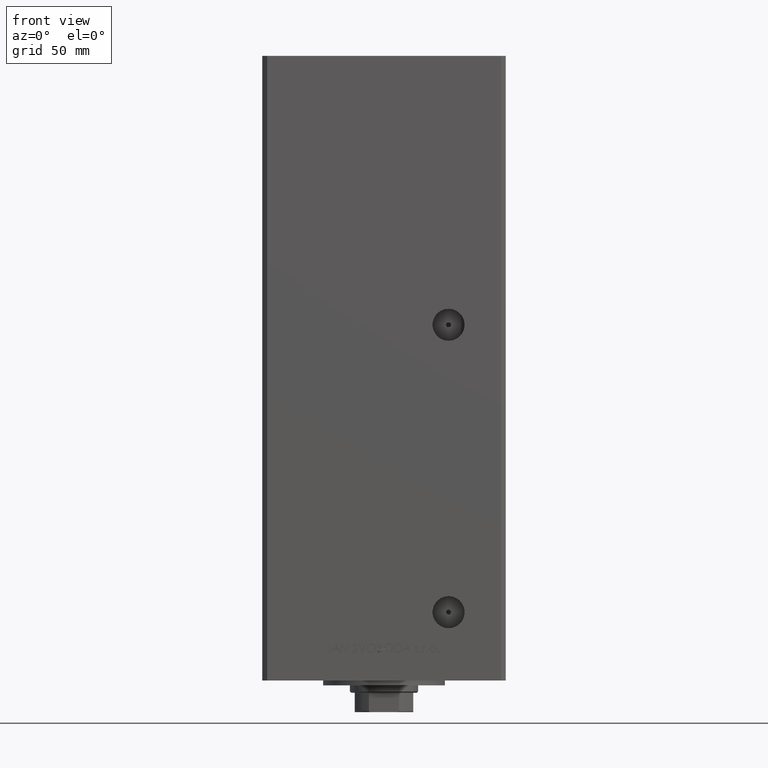
[diagram: clean part render]
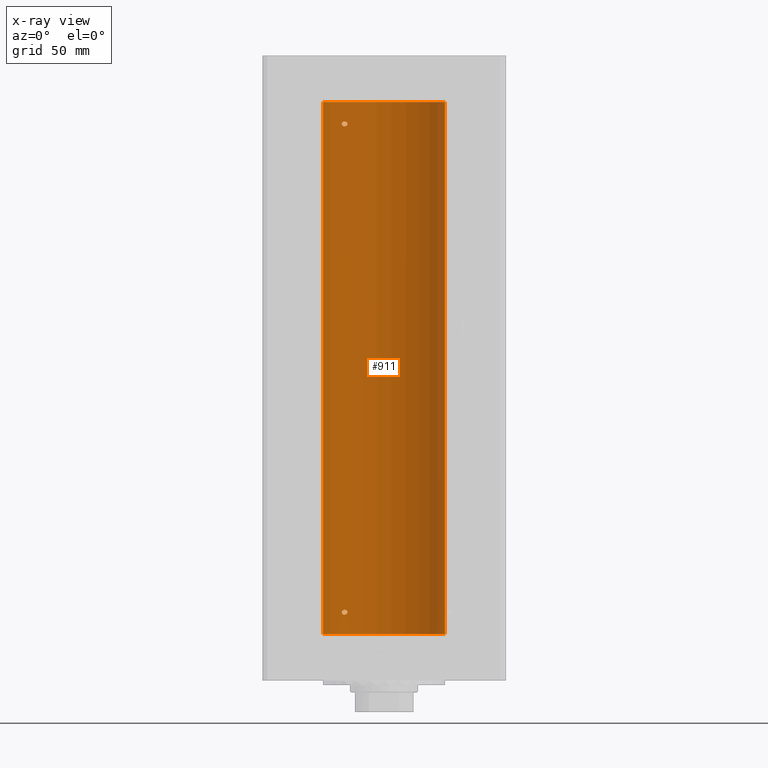
[diagram: x-ray — body ghosted, one internal face saturated and labeled with its STEP entity id]
A machine part, front view, then the same camera in x-ray: the body is ghosted and one INTERNAL B-rep face — a face not visible from any outside direction — is saturated and labeled: STEP entity #911.
In plain terms, the highlighted cylindrical surface (partial cylindrical patch) has radius 25 mm, axis along (-0, -0, -1).
Its self-contained STEP definition (entity closure, byte-faithful):
#595 = ORIENTED_EDGE ( 'NONE', *, *, #38505, .F. ) ;
#694 = LINE ( 'NONE', #38426, #27627 ) ;
#911 = ADVANCED_FACE ( 'NONE', ( #50081, #20165, #28049 ), #39436, .F. ) ;
#1089 = CARTESIAN_POINT ( 'NONE',  ( -16.34293146994552259, 18.91921593628409681, 208.4973425906725879 ) ) ;
#1253 = ORIENTED_EDGE ( 'NONE', *, *, #18450, .F. ) ;
#1343 = CARTESIAN_POINT ( 'NONE',  ( -15.23538646979298505, 19.82157806413532697, 208.9119998952828041 ) ) ;
#1860 = DIRECTION ( 'NONE',  ( -0.000000000000000000, 0.000000000000000000, 1.000000000000000000 ) ) ;
#2452 = EDGE_LOOP ( 'NONE', ( #22030, #1253 ) ) ;
#3408 = CARTESIAN_POINT ( 'NONE',  ( -15.01476641895662567, 19.98894406010707314, 209.6687945634013488 ) ) ;
#3441 = CARTESIAN_POINT ( 'NONE',  ( -15.00000000000003020, 19.99999999999998224, 9.000000000000000000 ) ) ;
#3906 = CARTESIAN_POINT ( 'NONE',  ( -15.58230678163759642, 19.55030131031898577, 210.3437394867029582 ) ) ;
#4152 = CARTESIAN_POINT ( 'NONE',  ( -15.00000000000018474, 20.00000000000002487, 209.5840388036241109 ) ) ;
#4233 = VERTEX_POINT ( 'NONE', #25284 ) ;
#4751 = CARTESIAN_POINT ( 'NONE',  ( 0.000000000000000000, 0.000000000000000000, 218.5000000000000000 ) ) ;
#4887 = CARTESIAN_POINT ( 'NONE',  ( -15.70664578139651546, 19.45064696206092947, 208.6005795994921925 ) ) ;
#5494 = CARTESIAN_POINT ( 'NONE',  ( 25.00000000000000000, 3.061616997868383043E-15, 0.000000000000000000 ) ) ;
#5673 = EDGE_LOOP ( 'NONE', ( #595, #43366 ) ) ;
#5897 = CARTESIAN_POINT ( 'NONE',  ( -16.71492528194901794, 18.59135325782701642, 208.5801415583420351 ) ) ;
#5979 = CARTESIAN_POINT ( 'NONE',  ( -25.00000000000000000, 0.000000000000000000, 218.5000000000000000 ) ) ;
#6398 = CARTESIAN_POINT ( 'NONE',  ( -17.30163983552692741, 18.04615713653365106, 9.336007472727791523 ) ) ;
#6888 = CARTESIAN_POINT ( 'NONE',  ( -15.00000000000022915, 19.99999999999999289, 9.084038803624169489 ) ) ;
#6976 = VERTEX_POINT ( 'NONE', #46863 ) ;
#7140 = CARTESIAN_POINT ( 'NONE',  ( -17.34935157289750407, 17.99999999999998224, 9.170973690606334827 ) ) ;
#7234 = CARTESIAN_POINT ( 'NONE',  ( -17.15234217094409530, 18.18812579706693100, 8.396573043774957057 ) ) ;
#9434 = CARTESIAN_POINT ( 'NONE',  ( -17.05249165747618534, 18.28208333366438509, 208.7922192200363725 ) ) ;
#9932 = CARTESIAN_POINT ( 'NONE',  ( -15.06763582406801483, 19.94912143246361680, 9.325069938771756384 ) ) ;
#11042 = CIRCLE ( 'NONE', #36938, 25.00000000000000000 ) ;
#11231 = CARTESIAN_POINT ( 'NONE',  ( -14.99999999999999112, 20.00000000000000711, 209.5000000000000000 ) ) ;
#11702 = EDGE_CURVE ( 'NONE', #6976, #21147, #24823, .T. ) ;
#12589 = DIRECTION ( 'NONE',  ( -0.000000000000000000, -0.000000000000000000, -1.000000000000000000 ) ) ;
#12975 = CARTESIAN_POINT ( 'NONE',  ( -15.01482636753733146, 19.98889854010115741, 209.3312026610076941 ) ) ;
#13231 = CARTESIAN_POINT ( 'NONE',  ( -15.10490010356605595, 19.92096840819819903, 209.1037666713224894 ) ) ;
#13982 = CARTESIAN_POINT ( 'NONE',  ( -15.10490800566739011, 19.92096305044237425, 9.396293174044259899 ) ) ;
#14086 = CARTESIAN_POINT ( 'NONE',  ( -17.05249165747622087, 18.28208333366434246, 8.292219220036422200 ) ) ;
#14336 = CARTESIAN_POINT ( 'NONE',  ( -16.34293146994556167, 18.91921593628406484, 7.997342590672626095 ) ) ;
#14583 = CARTESIAN_POINT ( 'NONE',  ( -15.06722189748652241, 19.94943357555937169, 8.675980324878883820 ) ) ;
#14831 = CARTESIAN_POINT ( 'NONE',  ( -15.01482636753737054, 19.98889854010113964, 8.831202661007710120 ) ) ;
#15066 = VERTEX_POINT ( 'NONE', #5494 ) ;
#15278 = CARTESIAN_POINT ( 'NONE',  ( -17.14593038898727428, 18.19399314418736324, 210.0959448831964664 ) ) ;
#15535 = CARTESIAN_POINT ( 'NONE',  ( -16.99843849356149050, 18.33190197607055794, 210.2468335145757123 ) ) ;
#16902 = CARTESIAN_POINT ( 'NONE',  ( 0.000000000000000000, 0.000000000000000000, 218.5000000000000000 ) ) ;
#17098 = LINE ( 'NONE', #5979, #42498 ) ;
#17275 = DIRECTION ( 'NONE',  ( 1.000000000000000000, 0.000000000000000000, 0.000000000000000000 ) ) ;
#17659 = CARTESIAN_POINT ( 'NONE',  ( 25.00000000000000000, 3.061616997868383043E-15, 218.5000000000000000 ) ) ;
#17762 = CARTESIAN_POINT ( 'NONE',  ( -17.19010376497224613, 18.15221652163108601, 9.535670123568010581 ) ) ;
#17790 = ORIENTED_EDGE ( 'NONE', *, *, #26127, .F. ) ;
#17959 = CIRCLE ( 'NONE', #24442, 25.00000000000000000 ) ;
#18124 = CARTESIAN_POINT ( 'NONE',  ( -16.71492528194906768, 18.59135325782698089, 8.080141558342051056 ) ) ;
#18366 = CARTESIAN_POINT ( 'NONE',  ( -16.46844752485329622, 18.81003400474351750, 8.011544319038927497 ) ) ;
#18450 = EDGE_CURVE ( 'NONE', #21147, #6976, #23706, .T. ) ;
#18607 = CARTESIAN_POINT ( 'NONE',  ( -17.30269557861145202, 18.04515136187498570, 8.666042081755742643 ) ) ;
#18824 = CARTESIAN_POINT ( 'NONE',  ( -16.72476285461317502, 18.58415905903083498, 210.4449447607957211 ) ) ;
#19070 = CARTESIAN_POINT ( 'NONE',  ( -15.34624284195505162, 19.73614442075940190, 210.1876185318512853 ) ) ;
#19158 = DIRECTION ( 'NONE',  ( -0.000000000000000000, -0.000000000000000000, -1.000000000000000000 ) ) ;
#19410 = DIRECTION ( 'NONE',  ( -1.000000000000000000, 0.000000000000000000, 0.000000000000000000 ) ) ;
#19561 = VERTEX_POINT ( 'NONE', #19981 ) ;
#19981 = CARTESIAN_POINT ( 'NONE',  ( -14.99999999999999112, 20.00000000000000711, 209.5000000000000000 ) ) ;
#20165 = FACE_BOUND ( 'NONE', #2452, .T. ) ;
#20816 = CARTESIAN_POINT ( 'NONE',  ( -16.46844752485324648, 18.81003400474354947, 208.5115443190389612 ) ) ;
#20822 = CARTESIAN_POINT ( 'NONE',  ( 0.000000000000000000, 0.000000000000000000, 0.000000000000000000 ) ) ;
#21147 = VERTEX_POINT ( 'NONE', #27682 ) ;
#21322 = CARTESIAN_POINT ( 'NONE',  ( -16.08757264251632080, 19.13682698743034649, 208.5034427658482059 ) ) ;
#21576 = CARTESIAN_POINT ( 'NONE',  ( -15.01476641895665232, 19.98894406010705183, 9.168794563401343467 ) ) ;
#21822 = CARTESIAN_POINT ( 'NONE',  ( -15.70535969280556543, 19.45169171760799642, 9.898960772112495476 ) ) ;
#22030 = ORIENTED_EDGE ( 'NONE', *, *, #11702, .F. ) ;
#22665 = CARTESIAN_POINT ( 'NONE',  ( -15.95808436639363492, 19.24489366819298297, 8.024260878849535317 ) ) ;
#22882 = CARTESIAN_POINT ( 'NONE',  ( -16.46913072925702792, 18.81168496547891777, 210.5057775588113884 ) ) ;
#23380 = CARTESIAN_POINT ( 'NONE',  ( -15.10490800566735103, 19.92096305044241689, 209.8962931740442457 ) ) ;
#23706 = B_SPLINE_CURVE_WITH_KNOTS ( 'NONE', 3,
 ( #48678, #6888, #21576, #9932, #13982, #44889, #45136, #49427, #21822, #29697, #25376, #37783, #29937, #49190, #25873, #40836, #17762, #6398, #7140, #37272 ),
 .UNSPECIFIED., .F., .F.,
 ( 4, 2, 2, 2, 2, 2, 2, 2, 2, 4 ),
 ( 0.004032696862986564698, 0.004284699222246930381, 0.004536701581507295196, 0.005040706300028027428, 0.005544711018548758794, 0.006048715737069490159, 0.007056725174110960695, 0.007308727533371327245, 0.007560729892631692928, 0.008064734611152420823 ),
 .UNSPECIFIED. ) ;
#23749 = DIRECTION ( 'NONE',  ( -0.000000000000000000, 0.000000000000000000, 1.000000000000000000 ) ) ;
#24343 = CARTESIAN_POINT ( 'NONE',  ( -25.00000000000000000, 0.000000000000000000, 218.5000000000000000 ) ) ;
#24442 = AXIS2_PLACEMENT_3D ( 'NONE', #20822, #1860, #17275 ) ;
#24823 = B_SPLINE_CURVE_WITH_KNOTS ( 'NONE', 3,
 ( #30525, #30281, #18607, #7234, #14086, #41182, #18124, #18366, #14336, #45238, #22665, #33832, #33336, #48789, #37136, #34073, #14583, #14831, #38122, #3441 ),
 .UNSPECIFIED., .F., .F.,
 ( 4, 2, 2, 2, 2, 2, 2, 2, 2, 4 ),
 ( 1.994630283518400476E-16, 0.0005040871078734959028, 0.001008174215746792312, 0.001512261323620088613, 0.002016348431493385131, 0.002520435539366681649, 0.003024522647239977734, 0.003528609755113270782, 0.003780653309049917740, 0.004032696862986564698 ),
 .UNSPECIFIED. ) ;
#24872 = CARTESIAN_POINT ( 'NONE',  ( -15.06722189748648866, 19.94943357555938590, 209.1759803248789069 ) ) ;
#25284 = CARTESIAN_POINT ( 'NONE',  ( -17.34935157289806185, 17.99999999999981526, 209.5000000000001137 ) ) ;
#25376 = CARTESIAN_POINT ( 'NONE',  ( -16.08745393861406825, 19.13692152169247507, 9.996501509986934764 ) ) ;
#25708 = DIRECTION ( 'NONE',  ( -0.000000000000000000, -0.000000000000000000, -1.000000000000000000 ) ) ;
#25873 = CARTESIAN_POINT ( 'NONE',  ( -17.05007833789896310, 18.28384926940283606, 9.701373999012135485 ) ) ;
#26127 = EDGE_CURVE ( 'NONE', #29014, #15066, #694, .T. ) ;
#26641 = AXIS2_PLACEMENT_3D ( 'NONE', #4751, #12589, #19410 ) ;
#26688 = CARTESIAN_POINT ( 'NONE',  ( -15.06763582406798818, 19.94912143246363811, 209.8250699387717475 ) ) ;
#27169 = ORIENTED_EDGE ( 'NONE', *, *, #42645, .T. ) ;
#27627 = VECTOR ( 'NONE', #19158, 1000.000000000000000 ) ;
#27682 = CARTESIAN_POINT ( 'NONE',  ( -15.00000000000003020, 19.99999999999998224, 9.000000000000000000 ) ) ;
#27738 = EDGE_CURVE ( 'NONE', #15066, #29715, #17959, .T. ) ;
#28049 = FACE_BOUND ( 'NONE', #5673, .T. ) ;
#28075 = DIRECTION ( 'NONE',  ( 1.000000000000000000, 0.000000000000000000, 0.000000000000000000 ) ) ;
#28941 = CARTESIAN_POINT ( 'NONE',  ( -17.34935157289747210, 18.00000000000002132, 209.3289983604257998 ) ) ;
#29014 = VERTEX_POINT ( 'NONE', #17659 ) ;
#29120 = EDGE_LOOP ( 'NONE', ( #17790, #38860, #27169, #42101 ) ) ;
#29697 = CARTESIAN_POINT ( 'NONE',  ( -15.95796937689564210, 19.24499537862564225, 9.975773099652192499 ) ) ;
#29715 = VERTEX_POINT ( 'NONE', #39539 ) ;
#29937 = CARTESIAN_POINT ( 'NONE',  ( -16.72476285461320700, 18.58415905903079945, 9.944944760795701555 ) ) ;
#30004 = CARTESIAN_POINT ( 'NONE',  ( -15.95796937689560480, 19.24499537862567422, 210.4757730996522298 ) ) ;
#30247 = CARTESIAN_POINT ( 'NONE',  ( -17.19010376497220705, 18.15221652163111088, 210.0356701235680248 ) ) ;
#30281 = CARTESIAN_POINT ( 'NONE',  ( -17.34935157289750052, 17.99999999999997868, 8.828998360425810432 ) ) ;
#30525 = CARTESIAN_POINT ( 'NONE',  ( -17.34935157289809737, 17.99999999999978684, 9.000000000000094147 ) ) ;
#30997 = CARTESIAN_POINT ( 'NONE',  ( -17.34935157289806185, 17.99999999999981526, 209.5000000000001137 ) ) ;
#31453 = B_SPLINE_CURVE_WITH_KNOTS ( 'NONE', 3,
 ( #44135, #28941, #32728, #48176, #9434, #47675, #5897, #20816, #1089, #21322, #36776, #4887, #31971, #36021, #1343, #13231, #24872, #12975, #36276, #48425 ),
 .UNSPECIFIED., .F., .F.,
 ( 4, 2, 2, 2, 2, 2, 2, 2, 2, 4 ),
 ( 2.254873622441466949E-16, 0.0005040871078735091300, 0.001008174215746792746, 0.001512261323620076470, 0.002016348431493359978, 0.002520435539366643485, 0.003024522647239927427, 0.003528609755113210501, 0.003780653309049884347, 0.004032696862986557759 ),
 .UNSPECIFIED. ) ;
#31971 = CARTESIAN_POINT ( 'NONE',  ( -15.58164749401199956, 19.55082150006405328, 208.6566780726851391 ) ) ;
#32728 = CARTESIAN_POINT ( 'NONE',  ( -17.30269557861141294, 18.04515136187502478, 209.1660420817557053 ) ) ;
#33336 = CARTESIAN_POINT ( 'NONE',  ( -15.58164749401203331, 19.55082150006402486, 8.156678072685190628 ) ) ;
#33832 = CARTESIAN_POINT ( 'NONE',  ( -15.70664578139654566, 19.45064696206089749, 8.100579599492109040 ) ) ;
#33906 = EDGE_CURVE ( 'NONE', #19561, #4233, #40312, .T. ) ;
#34073 = CARTESIAN_POINT ( 'NONE',  ( -15.10490010356608792, 19.92096840819818127, 8.603766671322519599 ) ) ;
#34288 = CARTESIAN_POINT ( 'NONE',  ( -15.70535969280552280, 19.45169171760802485, 210.3989607721124173 ) ) ;
#34532 = CARTESIAN_POINT ( 'NONE',  ( -17.30163983552688833, 18.04615713653367948, 209.8360074727278572 ) ) ;
#34778 = CARTESIAN_POINT ( 'NONE',  ( -15.23594348686699185, 19.82115246225716021, 210.0887219326858144 ) ) ;
#36021 = CARTESIAN_POINT ( 'NONE',  ( -15.34666241858318259, 19.73581294411415854, 208.8121224605376369 ) ) ;
#36276 = CARTESIAN_POINT ( 'NONE',  ( -15.00000000000018119, 20.00000000000001421, 209.4159474586024032 ) ) ;
#36776 = CARTESIAN_POINT ( 'NONE',  ( -15.95808436639360117, 19.24489366819300784, 208.5242608788495886 ) ) ;
#36938 = AXIS2_PLACEMENT_3D ( 'NONE', #16902, #23749, #28075 ) ;
#37136 = CARTESIAN_POINT ( 'NONE',  ( -15.23538646979300637, 19.82157806413531276, 8.411999895282763262 ) ) ;
#37272 = CARTESIAN_POINT ( 'NONE',  ( -17.34935157289809737, 17.99999999999978684, 9.000000000000094147 ) ) ;
#37783 = CARTESIAN_POINT ( 'NONE',  ( -16.46913072925706700, 18.81168496547887869, 10.00577755881140973 ) ) ;
#38122 = CARTESIAN_POINT ( 'NONE',  ( -15.00000000000022737, 20.00000000000001066, 8.915947458602445863 ) ) ;
#38426 = CARTESIAN_POINT ( 'NONE',  ( 25.00000000000000000, 3.061616997868383043E-15, 218.5000000000000000 ) ) ;
#38505 = EDGE_CURVE ( 'NONE', #4233, #19561, #31453, .T. ) ;
#38860 = ORIENTED_EDGE ( 'NONE', *, *, #46451, .T. ) ;
#39436 = CYLINDRICAL_SURFACE ( 'NONE', #26641, 25.00000000000000000 ) ;
#39539 = CARTESIAN_POINT ( 'NONE',  ( -25.00000000000000000, 0.000000000000000000, 0.000000000000000000 ) ) ;
#40312 = B_SPLINE_CURVE_WITH_KNOTS ( 'NONE', 3,
 ( #11231, #4152, #3408, #26688, #23380, #34778, #19070, #3906, #34288, #30004, #49254, #22882, #18824, #15535, #49747, #15278, #30247, #34532, #45696, #30997 ),
 .UNSPECIFIED., .F., .F.,
 ( 4, 2, 2, 2, 2, 2, 2, 2, 2, 4 ),
 ( 0.004032696862986557759, 0.004284699222246954667, 0.004536701581507351574, 0.005040706300028082940, 0.005544711018548810835, 0.006048715737069539598, 0.007056725174110996257, 0.007308727533371349797, 0.007560729892631701601, 0.008064734611152412150 ),
 .UNSPECIFIED. ) ;
#40836 = CARTESIAN_POINT ( 'NONE',  ( -17.14593038898732047, 18.19399314418731706, 9.595944883196496633 ) ) ;
#41182 = CARTESIAN_POINT ( 'NONE',  ( -16.83415218046514994, 18.48332662461723075, 8.134317266281160030 ) ) ;
#42101 = ORIENTED_EDGE ( 'NONE', *, *, #27738, .F. ) ;
#42498 = VECTOR ( 'NONE', #25708, 1000.000000000000000 ) ;
#42645 = EDGE_CURVE ( 'NONE', #44158, #29715, #17098, .T. ) ;
#43366 = ORIENTED_EDGE ( 'NONE', *, *, #33906, .F. ) ;
#44135 = CARTESIAN_POINT ( 'NONE',  ( -17.34935157289806185, 17.99999999999981526, 209.5000000000001137 ) ) ;
#44158 = VERTEX_POINT ( 'NONE', #24343 ) ;
#44889 = CARTESIAN_POINT ( 'NONE',  ( -15.23594348686702560, 19.82115246225712824, 9.588721932685826843 ) ) ;
#45136 = CARTESIAN_POINT ( 'NONE',  ( -15.34624284195509958, 19.73614442075936637, 9.687618531851303061 ) ) ;
#45238 = CARTESIAN_POINT ( 'NONE',  ( -16.08757264251635988, 19.13682698743031096, 8.003442765848202356 ) ) ;
#45696 = CARTESIAN_POINT ( 'NONE',  ( -17.34935157289746854, 18.00000000000001421, 209.6709736906063029 ) ) ;
#46451 = EDGE_CURVE ( 'NONE', #29014, #44158, #11042, .T. ) ;
#46863 = CARTESIAN_POINT ( 'NONE',  ( -17.34935157289809737, 17.99999999999978684, 9.000000000000094147 ) ) ;
#47675 = CARTESIAN_POINT ( 'NONE',  ( -16.83415218046510731, 18.48332662461726983, 208.6343172662811583 ) ) ;
#48176 = CARTESIAN_POINT ( 'NONE',  ( -17.15234217094406333, 18.18812579706696653, 208.8965730437749073 ) ) ;
#48425 = CARTESIAN_POINT ( 'NONE',  ( -14.99999999999999112, 20.00000000000000711, 209.5000000000000000 ) ) ;
#48678 = CARTESIAN_POINT ( 'NONE',  ( -15.00000000000003020, 19.99999999999998224, 9.000000000000000000 ) ) ;
#48789 = CARTESIAN_POINT ( 'NONE',  ( -15.34666241858321456, 19.73581294411414078, 8.312122460537613833 ) ) ;
#49190 = CARTESIAN_POINT ( 'NONE',  ( -16.99843849356151892, 18.33190197607051886, 9.746833514575651947 ) ) ;
#49254 = CARTESIAN_POINT ( 'NONE',  ( -16.08745393861402917, 19.13692152169251059, 210.4965015099869277 ) ) ;
#49427 = CARTESIAN_POINT ( 'NONE',  ( -15.58230678163763372, 19.55030131031894669, 9.843739486702936858 ) ) ;
#49747 = CARTESIAN_POINT ( 'NONE',  ( -17.05007833789892047, 18.28384926940287869, 210.2013739990121337 ) ) ;
#50081 = FACE_OUTER_BOUND ( 'NONE', #29120, .T. ) ;